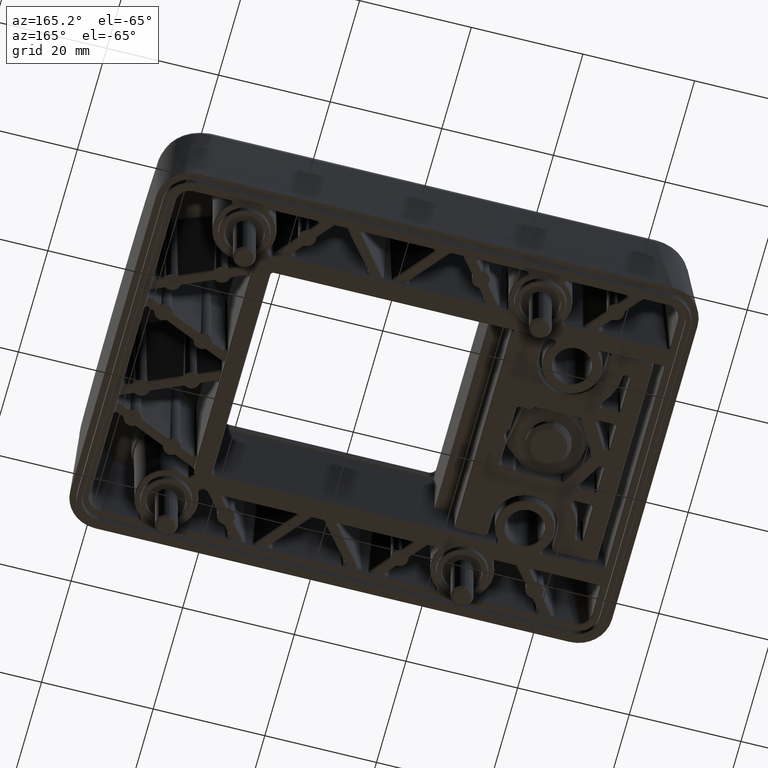
[diagram: clean part render]
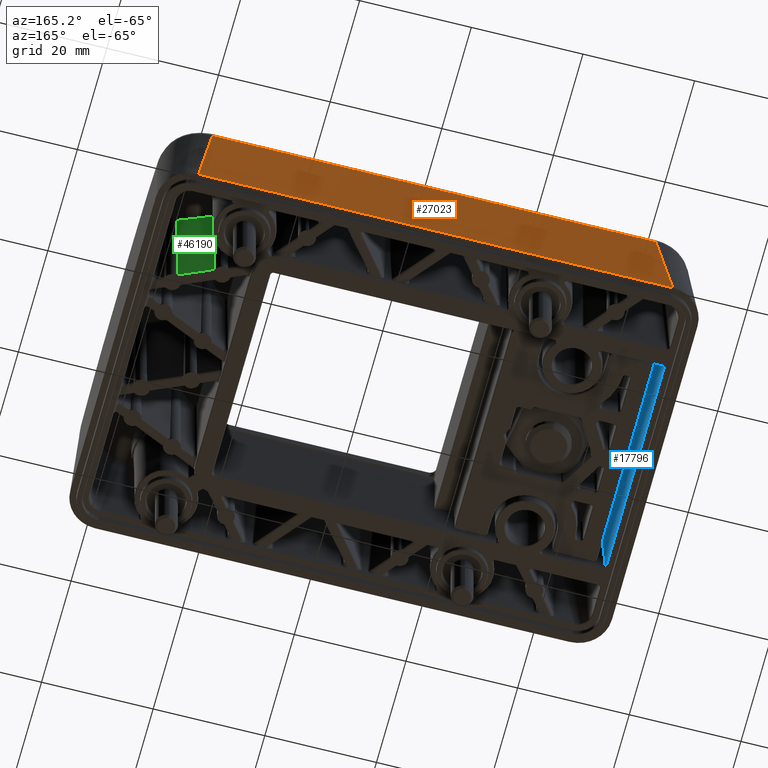
[diagram: same view with three faces highlighted in distinct colors, each labeled with its STEP entity id]
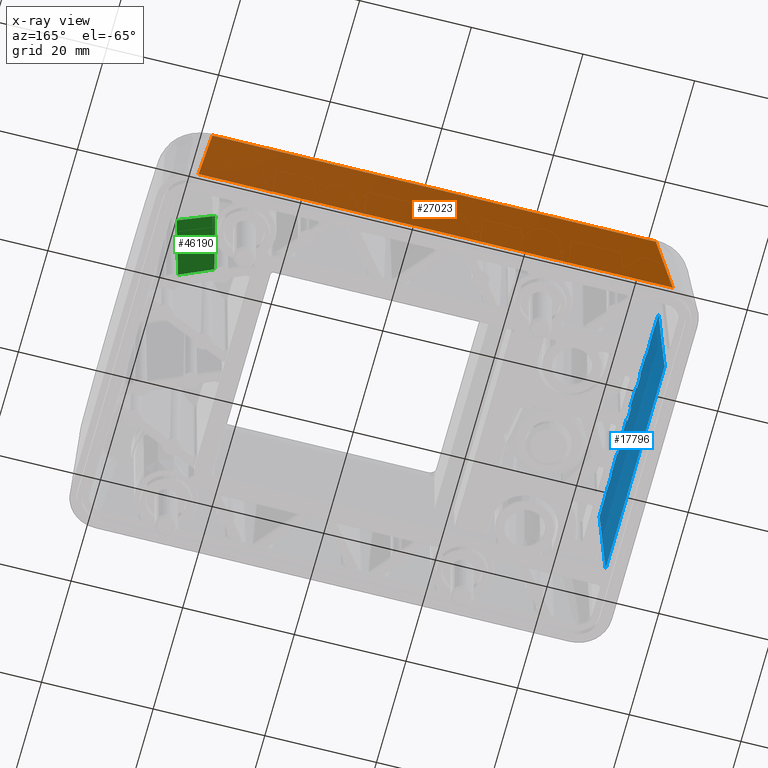
[diagram: x-ray of the same camera — body ghosted, the three highlighted faces saturated]
A machine part, auxiliary view with three faces highlighted in distinct colors.
The next image is the same camera in x-ray (body ghosted, the three faces saturated) — at least one of them is partly hidden behind the body in this view.
Their STEP definitions:

[orange] entity #27023 — the highlighted planar face has unit normal (0, 0.9986, 0.0523).
#9481=CARTESIAN_POINT('',(34.210609389060011,33.98108568207001,-0.5579584703163));
#9482=VERTEX_POINT('',#9481);
#9490=CARTESIAN_POINT('',(-45.210582957720007,33.981087229820012,-0.5579886392707));
#9491=VERTEX_POINT('',#9490);
#9492=CARTESIAN_POINT('',(-45.210582957720007,33.981087229820012,-0.5579886392707));
#9493=DIRECTION('',(0.999999999999928,-0.000000019487836,0.000000379860256));
#9494=VECTOR('',#9493,79.421192346785787);
#9495=LINE('',#9492,#9494);
#9496=EDGE_CURVE('',#9491,#9482,#9495,.T.);
#12951=CARTESIAN_POINT('',(-47.980102994580008,35.000000000000007,-20.000000000000004));
#12952=VERTEX_POINT('',#12951);
#12965=CARTESIAN_POINT('',(36.98010341009001,35.000000000000007,-20.000000000000004));
#12966=VERTEX_POINT('',#12965);
#12967=CARTESIAN_POINT('',(-47.980102994580008,35.000000000000007,-20.000000000000004));
#12968=DIRECTION('',(1.0,0.0,0.0));
#12969=VECTOR('',#12968,84.960206404670018);
#12970=LINE('',#12967,#12969);
#12971=EDGE_CURVE('',#12952,#12966,#12970,.T.);
#26299=CARTESIAN_POINT('',(34.210609389060011,33.98108568207001,-0.5579584703163));
#26300=DIRECTION('',(0.140835661179995,0.051814328018698,-0.988676181543767));
#26301=VECTOR('',#26300,19.664721263261004);
#26302=LINE('',#26299,#26301);
#26303=EDGE_CURVE('',#9482,#12966,#26302,.T.);
#26885=CARTESIAN_POINT('',(-45.210582957720007,33.981087229820012,-0.5579886392707));
#26886=DIRECTION('',(-0.140837172104001,0.05181431846067,-0.988675966814307));
#26887=VECTOR('',#26886,19.664695019718263);
#26888=LINE('',#26885,#26887);
#26889=EDGE_CURVE('',#9491,#12952,#26888,.T.);
#27012=CARTESIAN_POINT('',(41.228113730325511,35.050945711078207,-20.972102076736704));
#27013=DIRECTION('',(0.0,0.998629534754574,0.052335956242939));
#27014=DIRECTION('',(0.0,-0.052335956242939,0.998629534754574));
#27015=AXIS2_PLACEMENT_3D('',#27012,#27013,#27014);
#27016=PLANE('',#27015);
#27017=ORIENTED_EDGE('',*,*,#26889,.F.);
#27018=ORIENTED_EDGE('',*,*,#9496,.T.);
#27019=ORIENTED_EDGE('',*,*,#26303,.T.);
#27020=ORIENTED_EDGE('',*,*,#12971,.F.);
#27021=EDGE_LOOP('',(#27017,#27018,#27019,#27020));
#27022=FACE_OUTER_BOUND('',#27021,.T.);
#27023=ADVANCED_FACE('',(#27022),#27016,.T.);

[blue] entity #17796 — the highlighted planar face has unit normal (-0.9986, 0, 0.0523).
#17352=CARTESIAN_POINT('',(-50.480297298600014,20.000411139570005,-19.715700786870006));
#17353=VERTEX_POINT('',#17352);
#17371=CARTESIAN_POINT('',(-50.479474455220014,20.000000000000004,-19.700000000000003));
#17372=VERTEX_POINT('',#17371);
#17379=CARTESIAN_POINT('',(-50.480297298600014,20.000411139570005,-19.715700786870006));
#17380=CARTESIAN_POINT('',(-50.480023205030015,20.000137046010003,-19.710470770130005));
#17381=CARTESIAN_POINT('',(-50.479748923910009,20.000000000000004,-19.705237174490005));
#17382=CARTESIAN_POINT('',(-50.479474455220014,20.000000000000004,-19.700000000000003));
#17383=QUASI_UNIFORM_CURVE('',3,(#17379,#17380,#17381,#17382),.UNSPECIFIED.,.F.,.U.);
#17384=EDGE_CURVE('',#17353,#17372,#17383,.T.);
#17469=CARTESIAN_POINT('',(-50.504796628360005,36.360014400580013,-20.183175846850006));
#17470=DIRECTION('',(-0.998629534754574,0.0,0.052335956242939));
#17471=DIRECTION('',(0.052335956242939,0.0,0.998629534754574));
#17472=AXIS2_PLACEMENT_3D('',#17469,#17470,#17471);
#17473=PLANE('',#17472);
#17474=ORIENTED_EDGE('',*,*,#17384,.T.);
#17475=CARTESIAN_POINT('',(-49.399619879520017,20.000000000000004,0.9048527619311));
#17476=VERTEX_POINT('',#17475);
#17477=CARTESIAN_POINT('',(-50.479474455220014,20.000000000000004,-19.700000000000003));
#17478=DIRECTION('',(0.052335956242939,0.0,0.998629534754574));
#17479=VECTOR('',#17478,20.633129749156332);
#17480=LINE('',#17477,#17479);
#17481=EDGE_CURVE('',#17372,#17476,#17480,.T.);
#17482=ORIENTED_EDGE('',*,*,#17481,.T.);
#17483=CARTESIAN_POINT('',(-49.378365419680009,14.255418261880006,1.310412015368001));
#17484=VERTEX_POINT('',#17483);
#17485=CARTESIAN_POINT('',(-49.378365419680009,14.255418261880006,1.310412015368001));
#17486=DIRECTION('',(-0.00369070296098,0.99751040439246,-0.070422807672257));
#17487=VECTOR('',#17486,5.758919117859979);
#17488=LINE('',#17485,#17487);
#17489=EDGE_CURVE('',#17484,#17476,#17488,.T.);
#17490=ORIENTED_EDGE('',*,*,#17489,.F.);
#17491=CARTESIAN_POINT('',(-49.379185482840015,14.255145129610003,1.294764278069001));
#17492=VERTEX_POINT('',#17491);
#17493=CARTESIAN_POINT('',(-49.378365419680009,14.255418261880006,1.310412015368001));
#17494=DIRECTION('',(-0.052328007050791,-0.017428495791219,-0.998477855143792));
#17495=VECTOR('',#17494,0.015671591731596);
#17496=LINE('',#17493,#17495);
#17497=EDGE_CURVE('',#17484,#17492,#17496,.T.);
#17498=ORIENTED_EDGE('',*,*,#17497,.T.);
#17499=CARTESIAN_POINT('',(-49.394633424060011,13.955190821070003,1.0));
#17500=VERTEX_POINT('',#17499);
#17501=CARTESIAN_POINT('',(-49.379185482840015,14.255145129610003,1.294764278069001));
#17502=CARTESIAN_POINT('',(-49.381758376010005,14.254288195430004,1.245670551841));
#17503=CARTESIAN_POINT('',(-49.38580218395002,14.231882299470005,1.168510099711));
#17504=CARTESIAN_POINT('',(-49.390351815540008,14.169805768410004,1.081697957563));
#17505=CARTESIAN_POINT('',(-49.393527638400016,14.081933007380004,1.021099647454));
#17506=CARTESIAN_POINT('',(-49.394633424060011,14.004359388980003,1.0));
#17507=CARTESIAN_POINT('',(-49.394633424060011,13.955190821070003,1.0));
#17508=B_SPLINE_CURVE_WITH_KNOTS('',3,(#17501,#17502,#17503,#17504,#17505,#17506,#17507),.UNSPECIFIED.,.F.,.U.,(4,1,1,1,4),(0.0,0.25,0.5,0.75,1.0),.UNSPECIFIED.);
#17509=EDGE_CURVE('',#17492,#17500,#17508,.T.);
#17510=ORIENTED_EDGE('',*,*,#17509,.T.);
#17511=CARTESIAN_POINT('',(-49.394633424060011,12.044809178930002,1.0));
#17512=VERTEX_POINT('',#17511);
#17513=CARTESIAN_POINT('',(-49.394633424060011,12.044809178930002,1.0));
#17514=DIRECTION('',(0.0,1.0,0.0));
#17515=VECTOR('',#17514,1.910381642139999);
#17516=LINE('',#17513,#17515);
#17517=EDGE_CURVE('',#17512,#17500,#17516,.T.);
#17518=ORIENTED_EDGE('',*,*,#17517,.F.);
#17519=CARTESIAN_POINT('',(-49.379185482840015,11.744854870390002,1.294764278069001));
#17520=VERTEX_POINT('',#17519);
#17521=CARTESIAN_POINT('',(-49.394633424060011,12.044809178930002,1.0));
#17522=CARTESIAN_POINT('',(-49.394633424060011,11.995640611020002,1.0));
#17523=CARTESIAN_POINT('',(-49.393527638400016,11.918066992620002,1.021099647454));
#17524=CARTESIAN_POINT('',(-49.390351815540008,11.830194231590003,1.081697957563));
#17525=CARTESIAN_POINT('',(-49.38580218395002,11.768117700530002,1.168510099711));
#17526=CARTESIAN_POINT('',(-49.381758376010005,11.745711804570004,1.245670551841));
#17527=CARTESIAN_POINT('',(-49.379185482840015,11.744854870390002,1.294764278069001));
#17528=B_SPLINE_CURVE_WITH_KNOTS('',3,(#17521,#17522,#17523,#17524,#17525,#17526,#17527),.UNSPECIFIED.,.F.,.U.,(4,1,1,1,4),(0.0,0.25,0.5,0.75,1.0),.UNSPECIFIED.);
#17529=EDGE_CURVE('',#17512,#17520,#17528,.T.);
#17530=ORIENTED_EDGE('',*,*,#17529,.T.);
#17531=CARTESIAN_POINT('',(-49.369064077770012,11.741483810120004,1.487892191633));
#17532=VERTEX_POINT('',#17531);
#17533=CARTESIAN_POINT('',(-49.369064077770012,11.741483810120004,1.487892191633));
#17534=DIRECTION('',(-0.052328007051394,0.017428495790929,-0.998477855143766));
#17535=VECTOR('',#17534,0.193422330369373);
#17536=LINE('',#17533,#17535);
#17537=EDGE_CURVE('',#17532,#17520,#17536,.T.);
#17538=ORIENTED_EDGE('',*,*,#17537,.F.);
#17539=CARTESIAN_POINT('',(-49.354345576760011,7.763418370329003,1.768737921302001));
#17540=VERTEX_POINT('',#17539);
#17541=CARTESIAN_POINT('',(-49.354345576760011,7.763418370329003,1.768737921302001));
#17542=DIRECTION('',(-0.003690702960979,0.99751040439246,-0.070422807672267));
#17543=VECTOR('',#17542,3.987993931966908);
#17544=LINE('',#17541,#17543);
#17545=EDGE_CURVE('',#17540,#17532,#17544,.T.);
#17546=ORIENTED_EDGE('',*,*,#17545,.F.);
#17547=CARTESIAN_POINT('',(-49.379185482840015,7.755145129612002,1.294764278069001));
#17548=VERTEX_POINT('',#17547);
#17549=CARTESIAN_POINT('',(-49.354345576760011,7.763418370329003,1.768737921302001));
#17550=DIRECTION('',(-0.052328007051358,-0.01742849579092,-0.998477855143768));
#17551=VECTOR('',#17550,0.474696199611486);
#17552=LINE('',#17549,#17551);
#17553=EDGE_CURVE('',#17540,#17548,#17552,.T.);
#17554=ORIENTED_EDGE('',*,*,#17553,.T.);
#17555=CARTESIAN_POINT('',(-49.394633424060011,7.455190821065003,1.0));
#17556=VERTEX_POINT('',#17555);
#17557=CARTESIAN_POINT('',(-49.379185482840015,7.755145129612002,1.294764278069001));
#17558=CARTESIAN_POINT('',(-49.381758376010005,7.754288195433004,1.245670551841));
#17559=CARTESIAN_POINT('',(-49.38580218395002,7.731882299474002,1.168510099711));
#17560=CARTESIAN_POINT('',(-49.390351815540008,7.669805768414002,1.081697957563));
#17561=CARTESIAN_POINT('',(-49.393527638400016,7.581933007377002,1.021099647454));
#17562=CARTESIAN_POINT('',(-49.394633424060011,7.504359388975002,1.0));
#17563=CARTESIAN_POINT('',(-49.394633424060011,7.455190821065003,1.0));
#17564=B_SPLINE_CURVE_WITH_KNOTS('',3,(#17557,#17558,#17559,#17560,#17561,#17562,#17563),.UNSPECIFIED.,.F.,.U.,(4,1,1,1,4),(0.0,0.25,0.5,0.75,1.0),.UNSPECIFIED.);
#17565=EDGE_CURVE('',#17548,#17556,#17564,.T.);
#17566=ORIENTED_EDGE('',*,*,#17565,.T.);
#17567=CARTESIAN_POINT('',(-49.394633424060011,5.544809178935002,1.0));
#17568=VERTEX_POINT('',#17567);
#17569=CARTESIAN_POINT('',(-49.394633424060011,5.544809178935002,1.0));
#17570=DIRECTION('',(0.0,1.0,0.0));
#17571=VECTOR('',#17570,1.910381642130001);
#17572=LINE('',#17569,#17571);
#17573=EDGE_CURVE('',#17568,#17556,#17572,.T.);
#17574=ORIENTED_EDGE('',*,*,#17573,.F.);
#17575=CARTESIAN_POINT('',(-49.379185482840015,5.244854870388002,1.294764278069001));
#17576=VERTEX_POINT('',#17575);
#17577=CARTESIAN_POINT('',(-49.394633424060011,5.544809178935002,1.0));
#17578=CARTESIAN_POINT('',(-49.394633424060011,5.495640611025001,1.0));
#17579=CARTESIAN_POINT('',(-49.393527638400016,5.418066992623002,1.021099647454));
#17580=CARTESIAN_POINT('',(-49.390351815540008,5.330194231586002,1.081697957563));
#17581=CARTESIAN_POINT('',(-49.38580218395002,5.268117700526002,1.168510099711));
#17582=CARTESIAN_POINT('',(-49.381758376010005,5.245711804567002,1.245670551841));
#17583=CARTESIAN_POINT('',(-49.379185482840015,5.244854870388002,1.294764278069001));
#17584=B_SPLINE_CURVE_WITH_KNOTS('',3,(#17577,#17578,#17579,#17580,#17581,#17582,#17583),.UNSPECIFIED.,.F.,.U.,(4,1,1,1,4),(0.0,0.25,0.5,0.75,1.0),.UNSPECIFIED.);
#17585=EDGE_CURVE('',#17568,#17576,#17584,.T.);
#17586=ORIENTED_EDGE('',*,*,#17585,.T.);
#17587=CARTESIAN_POINT('',(-49.344984962380011,5.233463960234001,1.947349083709));
#17588=VERTEX_POINT('',#17587);
#17589=CARTESIAN_POINT('',(-49.344984962380011,5.233463960234001,1.947349083709));
#17590=DIRECTION('',(-0.052328007051377,0.01742849579093,-0.998477855143767));
#17591=VECTOR('',#17590,0.653579648540304);
#17592=LINE('',#17589,#17591);
#17593=EDGE_CURVE('',#17588,#17576,#17592,.T.);
#17594=ORIENTED_EDGE('',*,*,#17593,.F.);
#17595=CARTESIAN_POINT('',(-49.330325733840006,1.271418478775,2.227063827235001));
#17596=VERTEX_POINT('',#17595);
#17597=CARTESIAN_POINT('',(-49.330325733840006,1.271418478775,2.227063827235001));
#17598=DIRECTION('',(-0.003690702960976,0.997510404392461,-0.070422807672247));
#17599=VECTOR('',#17598,3.971933990876095);
#17600=LINE('',#17597,#17599);
#17601=EDGE_CURVE('',#17596,#17588,#17600,.T.);
#17602=ORIENTED_EDGE('',*,*,#17601,.F.);
#17603=CARTESIAN_POINT('',(-49.379185482840015,1.255145129612,1.294764278069001));
#17604=VERTEX_POINT('',#17603);
#17605=CARTESIAN_POINT('',(-49.330325733840006,1.271418478775,2.227063827235001));
#17606=DIRECTION('',(-0.052328007051371,-0.017428495790919,-0.998477855143767));
#17607=VECTOR('',#17606,0.933720807490361);
#17608=LINE('',#17605,#17607);
#17609=EDGE_CURVE('',#17596,#17604,#17608,.T.);
#17610=ORIENTED_EDGE('',*,*,#17609,.T.);
#17611=CARTESIAN_POINT('',(-49.394633424060011,0.9551908210653,1.0));
#17612=VERTEX_POINT('',#17611);
#17613=CARTESIAN_POINT('',(-49.379185482840015,1.255145129612,1.294764278069001));
#17614=CARTESIAN_POINT('',(-49.381758376010005,1.254288195433,1.245670551841));
#17615=CARTESIAN_POINT('',(-49.38580218395002,1.231882299474,1.168510099711));
#17616=CARTESIAN_POINT('',(-49.390351815540008,1.169805768414,1.081697957563));
#17617=CARTESIAN_POINT('',(-49.393527638400016,1.081933007377,1.021099647454));
#17618=CARTESIAN_POINT('',(-49.394633424060011,1.004359388975,1.0));
#17619=CARTESIAN_POINT('',(-49.394633424060011,0.9551908210653,1.0));
#17620=B_SPLINE_CURVE_WITH_KNOTS('',3,(#17613,#17614,#17615,#17616,#17617,#17618,#17619),.UNSPECIFIED.,.F.,.U.,(4,1,1,1,4),(0.0,0.25,0.5,0.75,1.0),.UNSPECIFIED.);
#17621=EDGE_CURVE('',#17604,#17612,#17620,.T.);
#17622=ORIENTED_EDGE('',*,*,#17621,.T.);
#17623=CARTESIAN_POINT('',(-49.394633424060011,-0.9551908210653,1.0));
#17624=VERTEX_POINT('',#17623);
#17625=CARTESIAN_POINT('',(-49.394633424060011,0.9551908210653,1.0));
#17626=DIRECTION('',(0.0,-1.0,0.0));
#17627=VECTOR('',#17626,1.910381642130601);
#17628=LINE('',#17625,#17627);
#17629=EDGE_CURVE('',#17612,#17624,#17628,.T.);
#17630=ORIENTED_EDGE('',*,*,#17629,.T.);
#17631=CARTESIAN_POINT('',(-49.379185482840015,-1.255145129612,1.294764278069001));
#17632=VERTEX_POINT('',#17631);
#17633=CARTESIAN_POINT('',(-49.379185482840015,-1.255145129612,1.294764278069001));
#17634=CARTESIAN_POINT('',(-49.381758376010005,-1.254288195433,1.245670551841));
#17635=CARTESIAN_POINT('',(-49.38580218395002,-1.231882299474,1.168510099711));
#17636=CARTESIAN_POINT('',(-49.390351815540008,-1.169805768414,1.081697957563));
#17637=CARTESIAN_POINT('',(-49.393527638400016,-1.081933007377,1.021099647454));
#17638=CARTESIAN_POINT('',(-49.394633424060011,-1.004359388975,1.0));
#17639=CARTESIAN_POINT('',(-49.394633424060011,-0.9551908210653,1.0));
#17640=B_SPLINE_CURVE_WITH_KNOTS('',3,(#17633,#17634,#17635,#17636,#17637,#17638,#17639),.UNSPECIFIED.,.F.,.U.,(4,1,1,1,4),(0.0,0.25,0.5,0.75,1.0),.UNSPECIFIED.);
#17641=EDGE_CURVE('',#17632,#17624,#17640,.T.);
#17642=ORIENTED_EDGE('',*,*,#17641,.F.);
#17643=CARTESIAN_POINT('',(-49.330325733840006,-1.271418478775,2.227063827235001));
#17644=VERTEX_POINT('',#17643);
#17645=CARTESIAN_POINT('',(-49.330325733840006,-1.271418478775,2.227063827235001));
#17646=DIRECTION('',(-0.052328007051371,0.017428495790919,-0.998477855143767));
#17647=VECTOR('',#17646,0.933720807490361);
#17648=LINE('',#17645,#17647);
#17649=EDGE_CURVE('',#17644,#17632,#17648,.T.);
#17650=ORIENTED_EDGE('',*,*,#17649,.F.);
#17651=CARTESIAN_POINT('',(-49.344984962380011,-5.233463960234001,1.947349083709));
#17652=VERTEX_POINT('',#17651);
#17653=CARTESIAN_POINT('',(-49.330325733840006,-1.271418478775,2.227063827235001));
#17654=DIRECTION('',(-0.003690702960976,-0.997510404392461,-0.070422807672247));
#17655=VECTOR('',#17654,3.971933990876095);
#17656=LINE('',#17653,#17655);
#17657=EDGE_CURVE('',#17644,#17652,#17656,.T.);
#17658=ORIENTED_EDGE('',*,*,#17657,.T.);
#17659=CARTESIAN_POINT('',(-49.379185482840015,-5.244854870388002,1.294764278069001));
#17660=VERTEX_POINT('',#17659);
#17661=CARTESIAN_POINT('',(-49.344984962380011,-5.233463960234001,1.947349083709));
#17662=DIRECTION('',(-0.052328007051377,-0.017428495790919,-0.998477855143767));
#17663=VECTOR('',#17662,0.653579648540304);
#17664=LINE('',#17661,#17663);
#17665=EDGE_CURVE('',#17652,#17660,#17664,.T.);
#17666=ORIENTED_EDGE('',*,*,#17665,.T.);
#17667=CARTESIAN_POINT('',(-49.394633424060011,-5.544809178935002,1.0));
#17668=VERTEX_POINT('',#17667);
#17669=CARTESIAN_POINT('',(-49.394633424060011,-5.544809178935002,1.0));
#17670=CARTESIAN_POINT('',(-49.394633424060011,-5.495640611025001,1.0));
#17671=CARTESIAN_POINT('',(-49.393527638400016,-5.418066992623002,1.021099647454));
#17672=CARTESIAN_POINT('',(-49.390351815540008,-5.330194231586002,1.081697957563));
#17673=CARTESIAN_POINT('',(-49.38580218395002,-5.268117700526002,1.168510099711));
#17674=CARTESIAN_POINT('',(-49.381758376010005,-5.245711804567002,1.245670551841));
#17675=CARTESIAN_POINT('',(-49.379185482840015,-5.244854870388002,1.294764278069001));
#17676=B_SPLINE_CURVE_WITH_KNOTS('',3,(#17669,#17670,#17671,#17672,#17673,#17674,#17675),.UNSPECIFIED.,.F.,.U.,(4,1,1,1,4),(0.0,0.25,0.5,0.75,1.0),.UNSPECIFIED.);
#17677=EDGE_CURVE('',#17668,#17660,#17676,.T.);
#17678=ORIENTED_EDGE('',*,*,#17677,.F.);
#17679=CARTESIAN_POINT('',(-49.394633424060011,-7.455190821065003,1.0));
#17680=VERTEX_POINT('',#17679);
#17681=CARTESIAN_POINT('',(-49.394633424060011,-5.544809178935002,1.0));
#17682=DIRECTION('',(0.0,-1.0,0.0));
#17683=VECTOR('',#17682,1.910381642130001);
#17684=LINE('',#17681,#17683);
#17685=EDGE_CURVE('',#17668,#17680,#17684,.T.);
#17686=ORIENTED_EDGE('',*,*,#17685,.T.);
#17687=CARTESIAN_POINT('',(-49.379185482840015,-7.755145129612002,1.294764278069001));
#17688=VERTEX_POINT('',#17687);
#17689=CARTESIAN_POINT('',(-49.379185482840015,-7.755145129612002,1.294764278069001));
#17690=CARTESIAN_POINT('',(-49.381758376010005,-7.754288195433004,1.245670551841));
#17691=CARTESIAN_POINT('',(-49.38580218395002,-7.731882299474002,1.168510099711));
#17692=CARTESIAN_POINT('',(-49.390351815540008,-7.669805768414002,1.081697957563));
#17693=CARTESIAN_POINT('',(-49.393527638400016,-7.581933007377002,1.021099647454));
#17694=CARTESIAN_POINT('',(-49.394633424060011,-7.504359388975002,1.0));
#17695=CARTESIAN_POINT('',(-49.394633424060011,-7.455190821065003,1.0));
#17696=B_SPLINE_CURVE_WITH_KNOTS('',3,(#17689,#17690,#17691,#17692,#17693,#17694,#17695),.UNSPECIFIED.,.F.,.U.,(4,1,1,1,4),(0.0,0.25,0.5,0.75,1.0),.UNSPECIFIED.);
#17697=EDGE_CURVE('',#17688,#17680,#17696,.T.);
#17698=ORIENTED_EDGE('',*,*,#17697,.F.);
#17699=CARTESIAN_POINT('',(-49.354345576760011,-7.763418370329003,1.768737921302001));
#17700=VERTEX_POINT('',#17699);
#17701=CARTESIAN_POINT('',(-49.354345576760011,-7.763418370329003,1.768737921302001));
#17702=DIRECTION('',(-0.052328007051358,0.01742849579092,-0.998477855143768));
#17703=VECTOR('',#17702,0.474696199611486);
#17704=LINE('',#17701,#17703);
#17705=EDGE_CURVE('',#17700,#17688,#17704,.T.);
#17706=ORIENTED_EDGE('',*,*,#17705,.F.);
#17707=CARTESIAN_POINT('',(-49.369064077770012,-11.741483810120004,1.487892191633));
#17708=VERTEX_POINT('',#17707);
#17709=CARTESIAN_POINT('',(-49.354345576760011,-7.763418370329003,1.768737921302001));
#17710=DIRECTION('',(-0.003690702960979,-0.99751040439246,-0.070422807672267));
#17711=VECTOR('',#17710,3.987993931966908);
#17712=LINE('',#17709,#17711);
#17713=EDGE_CURVE('',#17700,#17708,#17712,.T.);
#17714=ORIENTED_EDGE('',*,*,#17713,.T.);
#17715=CARTESIAN_POINT('',(-49.379185482840015,-11.744854870390002,1.294764278069001));
#17716=VERTEX_POINT('',#17715);
#17717=CARTESIAN_POINT('',(-49.369064077770012,-11.741483810120004,1.487892191633));
#17718=DIRECTION('',(-0.052328007051394,-0.017428495790929,-0.998477855143766));
#17719=VECTOR('',#17718,0.193422330369373);
#17720=LINE('',#17717,#17719);
#17721=EDGE_CURVE('',#17708,#17716,#17720,.T.);
#17722=ORIENTED_EDGE('',*,*,#17721,.T.);
#17723=CARTESIAN_POINT('',(-49.394633424060011,-12.044809178930002,1.0));
#17724=VERTEX_POINT('',#17723);
#17725=CARTESIAN_POINT('',(-49.394633424060011,-12.044809178930002,1.0));
#17726=CARTESIAN_POINT('',(-49.394633424060011,-11.995640611020002,1.0));
#17727=CARTESIAN_POINT('',(-49.393527638400016,-11.918066992620002,1.021099647454));
#17728=CARTESIAN_POINT('',(-49.390351815540008,-11.830194231590003,1.081697957563));
#17729=CARTESIAN_POINT('',(-49.38580218395002,-11.768117700530002,1.168510099711));
#17730=CARTESIAN_POINT('',(-49.381758376010005,-11.745711804570004,1.245670551841));
#17731=CARTESIAN_POINT('',(-49.379185482840015,-11.744854870390002,1.294764278069001));
#17732=B_SPLINE_CURVE_WITH_KNOTS('',3,(#17725,#17726,#17727,#17728,#17729,#17730,#17731),.UNSPECIFIED.,.F.,.U.,(4,1,1,1,4),(0.0,0.25,0.5,0.75,1.0),.UNSPECIFIED.);
#17733=EDGE_CURVE('',#17724,#17716,#17732,.T.);
#17734=ORIENTED_EDGE('',*,*,#17733,.F.);
#17735=CARTESIAN_POINT('',(-49.394633424060011,-13.955190821070003,1.0));
#17736=VERTEX_POINT('',#17735);
#17737=CARTESIAN_POINT('',(-49.394633424060011,-12.044809178930002,1.0));
#17738=DIRECTION('',(0.0,-1.0,0.0));
#17739=VECTOR('',#17738,1.910381642139999);
#17740=LINE('',#17737,#17739);
#17741=EDGE_CURVE('',#17724,#17736,#17740,.T.);
#17742=ORIENTED_EDGE('',*,*,#17741,.T.);
#17743=CARTESIAN_POINT('',(-49.379185482840015,-14.255145129610003,1.294764278069001));
#17744=VERTEX_POINT('',#17743);
#17745=CARTESIAN_POINT('',(-49.379185482840015,-14.255145129610003,1.294764278069001));
#17746=CARTESIAN_POINT('',(-49.381758376010005,-14.254288195430004,1.245670551841));
#17747=CARTESIAN_POINT('',(-49.38580218395002,-14.231882299470005,1.168510099711));
#17748=CARTESIAN_POINT('',(-49.390351815540008,-14.169805768410004,1.081697957563));
#17749=CARTESIAN_POINT('',(-49.393527638400016,-14.081933007380004,1.021099647454));
#17750=CARTESIAN_POINT('',(-49.394633424060011,-14.004359388980003,1.0));
#17751=CARTESIAN_POINT('',(-49.394633424060011,-13.955190821070003,1.0));
#17752=B_SPLINE_CURVE_WITH_KNOTS('',3,(#17745,#17746,#17747,#17748,#17749,#17750,#17751),.UNSPECIFIED.,.F.,.U.,(4,1,1,1,4),(0.0,0.25,0.5,0.75,1.0),.UNSPECIFIED.);
#17753=EDGE_CURVE('',#17744,#17736,#17752,.T.);
#17754=ORIENTED_EDGE('',*,*,#17753,.F.);
#17755=CARTESIAN_POINT('',(-49.378365419680009,-14.255418261880006,1.310412015368001));
#17756=VERTEX_POINT('',#17755);
#17757=CARTESIAN_POINT('',(-49.378365419680009,-14.255418261880006,1.310412015368001));
#17758=DIRECTION('',(-0.052328007050791,0.017428495791106,-0.998477855143794));
#17759=VECTOR('',#17758,0.015671591731596);
#17760=LINE('',#17757,#17759);
#17761=EDGE_CURVE('',#17756,#17744,#17760,.T.);
#17762=ORIENTED_EDGE('',*,*,#17761,.F.);
#17763=CARTESIAN_POINT('',(-49.399619879520017,-20.000000000000004,0.9048527619311));
#17764=VERTEX_POINT('',#17763);
#17765=CARTESIAN_POINT('',(-49.378365419680009,-14.255418261880006,1.310412015368001));
#17766=DIRECTION('',(-0.00369070296098,-0.99751040439246,-0.070422807672257));
#17767=VECTOR('',#17766,5.758919117859979);
#17768=LINE('',#17765,#17767);
#17769=EDGE_CURVE('',#17756,#17764,#17768,.T.);
#17770=ORIENTED_EDGE('',*,*,#17769,.T.);
#17771=CARTESIAN_POINT('',(-50.479474455220014,-20.000000000000004,-19.700000000000003));
#17772=VERTEX_POINT('',#17771);
#17773=CARTESIAN_POINT('',(-50.479474455220014,-20.000000000000004,-19.700000000000003));
#17774=DIRECTION('',(0.052335956242939,0.0,0.998629534754574));
#17775=VECTOR('',#17774,20.633129749156332);
#17776=LINE('',#17773,#17775);
#17777=EDGE_CURVE('',#17772,#17764,#17776,.T.);
#17778=ORIENTED_EDGE('',*,*,#17777,.F.);
#17779=CARTESIAN_POINT('',(-50.480297298600014,-20.000411139570005,-19.715700786870006));
#17780=VERTEX_POINT('',#17779);
#17781=CARTESIAN_POINT('',(-50.480297298600014,-20.000411139570005,-19.715700786870006));
#17782=CARTESIAN_POINT('',(-50.480023205030015,-20.000137046010003,-19.710470770130005));
#17783=CARTESIAN_POINT('',(-50.479748923910009,-20.000000000000004,-19.705237174490005));
#17784=CARTESIAN_POINT('',(-50.479474455220014,-20.000000000000004,-19.700000000000003));
#17785=QUASI_UNIFORM_CURVE('',3,(#17781,#17782,#17783,#17784),.UNSPECIFIED.,.F.,.U.);
#17786=EDGE_CURVE('',#17780,#17772,#17785,.T.);
#17787=ORIENTED_EDGE('',*,*,#17786,.F.);
#17788=CARTESIAN_POINT('',(-50.480297298600014,-20.000411139570005,-19.715700786870006));
#17789=DIRECTION('',(0.0,1.0,0.0));
#17790=VECTOR('',#17789,40.00082227914001);
#17791=LINE('',#17788,#17790);
#17792=EDGE_CURVE('',#17780,#17353,#17791,.T.);
#17793=ORIENTED_EDGE('',*,*,#17792,.T.);
#17794=EDGE_LOOP('',(#17474,#17482,#17490,#17498,#17510,#17518,#17530,#17538,#17546,#17554,#17566,#17574,#17586,#17594,#17602,#17610,#17622,#17630,#17642,#17650,#17658,#17666,#17678,#17686,#17698,#17706,#17714,#17722,#17734,#17742,#17754,#17762,#17770,#17778,#17787,#17793));
#17795=FACE_OUTER_BOUND('',#17794,.T.);
#17796=ADVANCED_FACE('',(#17795),#17473,.F.);

[green] entity #46190 — the highlighted planar face has unit normal (0.4084, 0.9128, -0.0087).
#46142=CARTESIAN_POINT('',(35.790585761338058,14.602953966662147,-19.602620416789733));
#46143=DIRECTION('',(0.408350510730006,0.912783494572913,-0.008726535498374));
#46144=DIRECTION('',(0.0,0.009559919491439,0.999954302925547));
#46145=AXIS2_PLACEMENT_3D('',#46142,#46143,#46144);
#46146=PLANE('',#46145);
#46147=CARTESIAN_POINT('',(29.402316256590009,17.676099337700006,2.910696144692001));
#46148=VERTEX_POINT('',#46147);
#46149=CARTESIAN_POINT('',(35.564754225880009,14.924478188490003,3.460779713043001));
#46150=VERTEX_POINT('',#46149);
#46151=CARTESIAN_POINT('',(29.402316256590009,17.676099337700006,2.910696144692001));
#46152=CARTESIAN_POINT('',(29.620551887060003,17.578688880560005,2.933840919298));
#46153=CARTESIAN_POINT('',(30.080016005430007,17.373596924410005,2.981724177039001));
#46154=CARTESIAN_POINT('',(30.835095557520006,17.036520658790003,3.057294724543001));
#46155=CARTESIAN_POINT('',(31.665596819620006,16.665740184050005,3.136744019644001));
#46156=CARTESIAN_POINT('',(32.55984636957001,16.266459062100004,3.218109944093002));
#46157=CARTESIAN_POINT('',(33.507742747460007,15.843181061080005,3.299791510331001));
#46158=CARTESIAN_POINT('',(34.504691854310011,15.397952141720005,3.380816569221001));
#46159=CARTESIAN_POINT('',(35.205552953680012,15.084920298350003,3.434295750077001));
#46160=CARTESIAN_POINT('',(35.564754225880009,14.924478188490003,3.460779713043001));
#46161=B_SPLINE_CURVE_WITH_KNOTS('',3,(#46151,#46152,#46153,#46154,#46155,#46156,#46157,#46158,#46159,#46160),.UNSPECIFIED.,.F.,.U.,(4,1,1,1,1,1,1,4),(0.0,0.1428571428571,0.2857142857143,0.4285714285714,0.5714285714286,0.7142857142857,0.8571428571429,1.0),.UNSPECIFIED.);
#46162=EDGE_CURVE('',#46148,#46150,#46161,.T.);
#46163=ORIENTED_EDGE('',*,*,#46162,.T.);
#46164=CARTESIAN_POINT('',(35.313884710550013,14.826714692800003,-18.504363267750005));
#46165=VERTEX_POINT('',#46164);
#46166=CARTESIAN_POINT('',(35.313884710550013,14.826714692800003,-18.504363267750005));
#46167=CARTESIAN_POINT('',(35.388270919280011,14.863435695570006,-11.182560523410004));
#46168=CARTESIAN_POINT('',(35.470156246170006,14.896801143430004,-3.860829561601001));
#46169=CARTESIAN_POINT('',(35.564754225880009,14.924478188490003,3.460779713043001));
#46170=QUASI_UNIFORM_CURVE('',3,(#46166,#46167,#46168,#46169),.UNSPECIFIED.,.F.,.U.);
#46171=EDGE_CURVE('',#46165,#46150,#46170,.T.);
#46172=ORIENTED_EDGE('',*,*,#46171,.F.);
#46173=CARTESIAN_POINT('',(29.493467133530004,17.430585714090004,-18.504363267750005));
#46174=VERTEX_POINT('',#46173);
#46175=CARTESIAN_POINT('',(29.493467133530004,17.430585714090004,-18.504363267750005));
#46176=DIRECTION('',(0.9128182518949,-0.4083660600583,0.0));
#46177=VECTOR('',#46176,6.376315947817929);
#46178=LINE('',#46175,#46177);
#46179=EDGE_CURVE('',#46174,#46165,#46178,.T.);
#46180=ORIENTED_EDGE('',*,*,#46179,.F.);
#46181=CARTESIAN_POINT('',(29.402316256590009,17.676099337700006,2.910696144692001));
#46182=CARTESIAN_POINT('',(29.443026139100006,17.589642761540006,-4.227558711665001));
#46183=CARTESIAN_POINT('',(29.471823144180007,17.508514546570005,-11.365926949960004));
#46184=CARTESIAN_POINT('',(29.493467133530004,17.430585714090004,-18.504363267750005));
#46185=QUASI_UNIFORM_CURVE('',3,(#46181,#46182,#46183,#46184),.UNSPECIFIED.,.F.,.U.);
#46186=EDGE_CURVE('',#46148,#46174,#46185,.T.);
#46187=ORIENTED_EDGE('',*,*,#46186,.F.);
#46188=EDGE_LOOP('',(#46163,#46172,#46180,#46187));
#46189=FACE_OUTER_BOUND('',#46188,.T.);
#46190=ADVANCED_FACE('',(#46189),#46146,.T.);